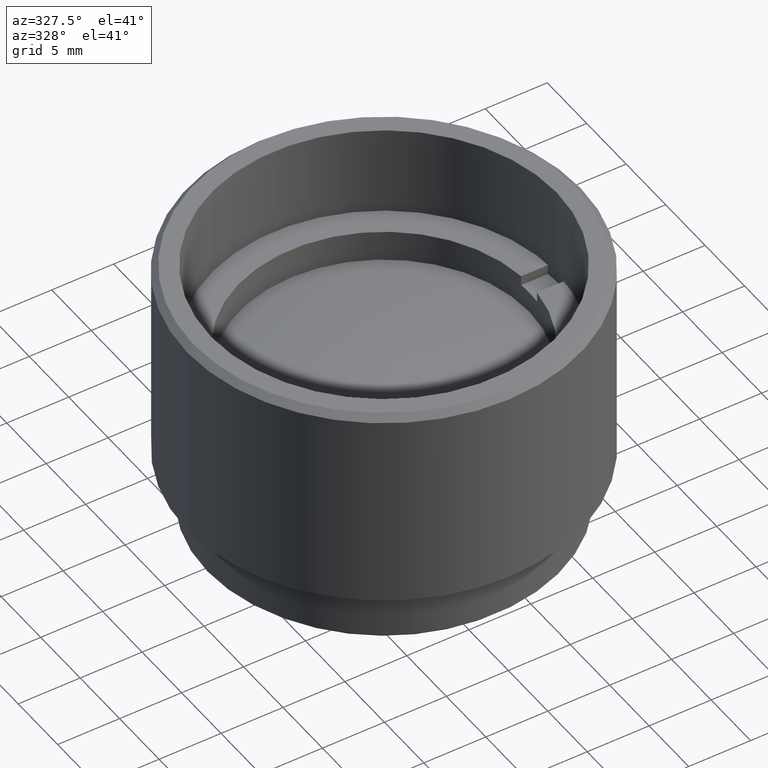
[diagram: clean part render]
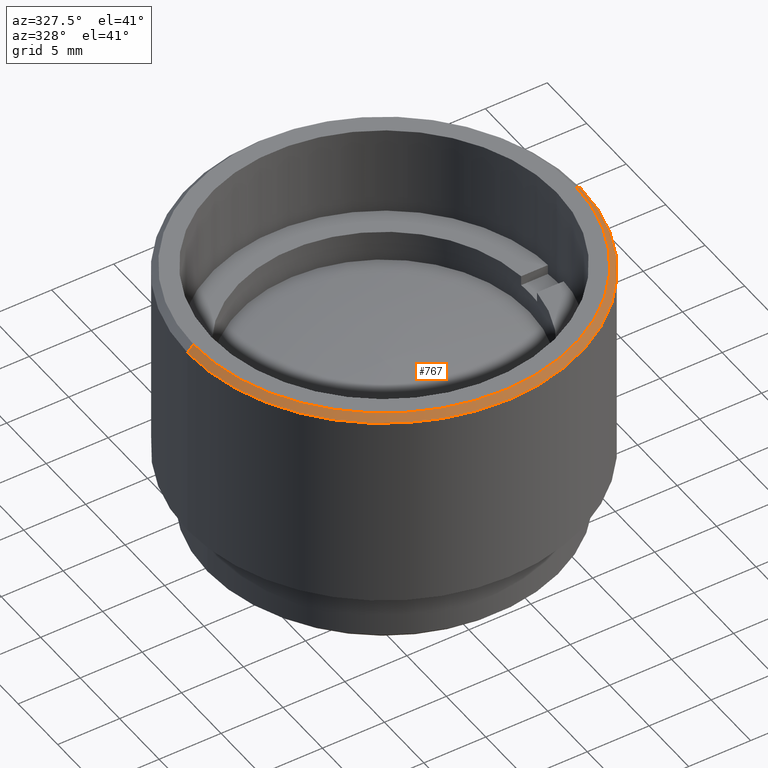
[diagram: same view with one face highlighted and labeled with its STEP entity id]
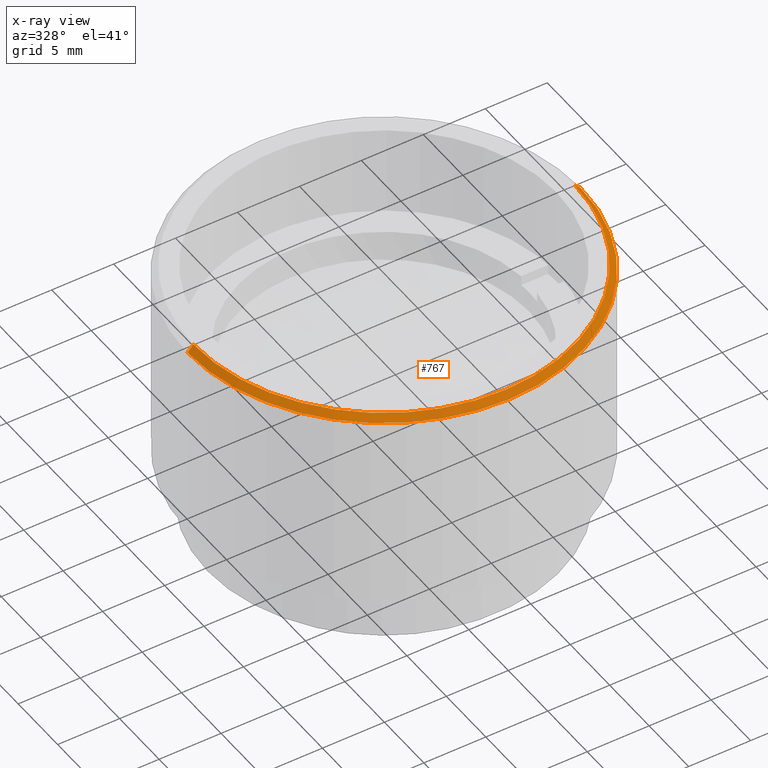
[diagram: x-ray of the same camera — body ghosted, the highlighted face saturated]
A machine part, auxiliary view. The second image highlights one B-rep face of the part: STEP entity #767.
The next image is the same camera in x-ray: the body ghosted, the highlighted face saturated — about 0% of this face is hidden behind the body in this view.
In plain terms, the highlighted conical surface has half-angle 45 deg.
Its self-contained STEP definition (entity closure, byte-faithful):
#91 = VERTEX_POINT ( 'NONE', #1559 ) ;
#160 = DIRECTION ( 'NONE',  ( 1.000000000000000000, 0.000000000000000000, 0.000000000000000000 ) ) ;
#192 = ORIENTED_EDGE ( 'NONE', *, *, #894, .F. ) ;
#236 = VERTEX_POINT ( 'NONE', #690 ) ;
#254 = EDGE_CURVE ( 'NONE', #1455, #236, #616, .T. ) ;
#306 = DIRECTION ( 'NONE',  ( 0.000000000000000000, 0.000000000000000000, -1.000000000000000000 ) ) ;
#345 = DIRECTION ( 'NONE',  ( 0.000000000000000000, 0.000000000000000000, 1.000000000000000000 ) ) ;
#361 = CARTESIAN_POINT ( 'NONE',  ( 15.37800000000000900, 1.913878017707484038E-15, 21.50000000000000000 ) ) ;
#364 = DIRECTION ( 'NONE',  ( -1.000000000000000000, 0.000000000000000000, 0.000000000000000000 ) ) ;
#385 = CARTESIAN_POINT ( 'NONE',  ( 0.000000000000000000, 0.000000000000000000, 21.50000000000000000 ) ) ;
#472 = DIRECTION ( 'NONE',  ( -0.7071067811865376918, 0.000000000000000000, -0.7071067811865574537 ) ) ;
#497 = LINE ( 'NONE', #641, #958 ) ;
#542 = VERTEX_POINT ( 'NONE', #361 ) ;
#597 = EDGE_CURVE ( 'NONE', #91, #236, #1275, .T. ) ;
#609 = AXIS2_PLACEMENT_3D ( 'NONE', #1496, #306, #364 ) ;
#616 = CIRCLE ( 'NONE', #808, 15.87800000000000011 ) ;
#637 = ORIENTED_EDGE ( 'NONE', *, *, #254, .F. ) ;
#641 = CARTESIAN_POINT ( 'NONE',  ( 15.37800000000000900, 1.883261847728801040E-15, 21.50000000000000000 ) ) ;
#675 = AXIS2_PLACEMENT_3D ( 'NONE', #385, #345, #1276 ) ;
#690 = CARTESIAN_POINT ( 'NONE',  ( -15.87800000000000011, 0.000000000000000000, 20.99999999999999289 ) ) ;
#767 = ADVANCED_FACE ( 'NONE', ( #956 ), #813, .T. ) ;
#795 = EDGE_LOOP ( 'NONE', ( #1034, #192, #1492, #637 ) ) ;
#808 = AXIS2_PLACEMENT_3D ( 'NONE', #1602, #1339, #160 ) ;
#813 = CONICAL_SURFACE ( 'NONE', #609, 15.37800000000000900, 0.7853981633974344012 ) ;
#894 = EDGE_CURVE ( 'NONE', #91, #542, #1194, .T. ) ;
#956 = FACE_OUTER_BOUND ( 'NONE', #795, .T. ) ;
#958 = VECTOR ( 'NONE', #1556, 999.9999999999998863 ) ;
#1034 = ORIENTED_EDGE ( 'NONE', *, *, #1217, .F. ) ;
#1148 = CARTESIAN_POINT ( 'NONE',  ( -15.37800000000000900, 0.000000000000000000, 21.50000000000000000 ) ) ;
#1180 = CARTESIAN_POINT ( 'NONE',  ( 15.87800000000000011, 1.944494187686167431E-15, 20.99999999999999289 ) ) ;
#1194 = CIRCLE ( 'NONE', #675, 15.37800000000000900 ) ;
#1217 = EDGE_CURVE ( 'NONE', #542, #1455, #497, .T. ) ;
#1275 = LINE ( 'NONE', #1148, #1669 ) ;
#1276 = DIRECTION ( 'NONE',  ( 1.000000000000000000, 0.000000000000000000, 0.000000000000000000 ) ) ;
#1339 = DIRECTION ( 'NONE',  ( 0.000000000000000000, 0.000000000000000000, -1.000000000000000000 ) ) ;
#1455 = VERTEX_POINT ( 'NONE', #1180 ) ;
#1492 = ORIENTED_EDGE ( 'NONE', *, *, #597, .T. ) ;
#1496 = CARTESIAN_POINT ( 'NONE',  ( 0.000000000000000000, 0.000000000000000000, 21.50000000000000000 ) ) ;
#1556 = DIRECTION ( 'NONE',  ( 0.7071067811865376918, 8.659560562354813296E-17, -0.7071067811865574537 ) ) ;
#1559 = CARTESIAN_POINT ( 'NONE',  ( -15.37800000000000900, 0.000000000000000000, 21.50000000000000000 ) ) ;
#1602 = CARTESIAN_POINT ( 'NONE',  ( 0.000000000000000000, 0.000000000000000000, 20.99999999999999289 ) ) ;
#1669 = VECTOR ( 'NONE', #472, 999.9999999999998863 ) ;